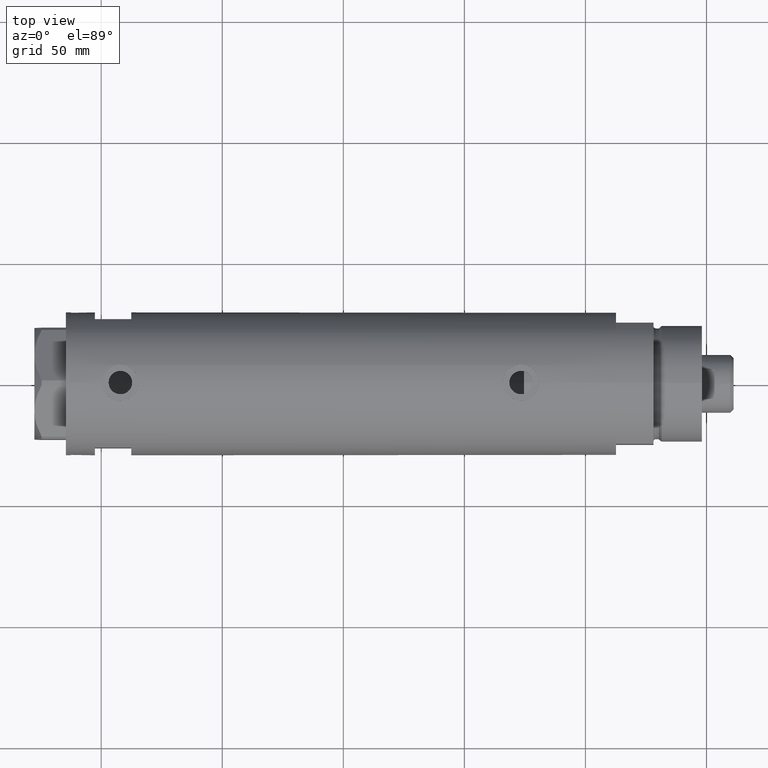
[diagram: clean part render]
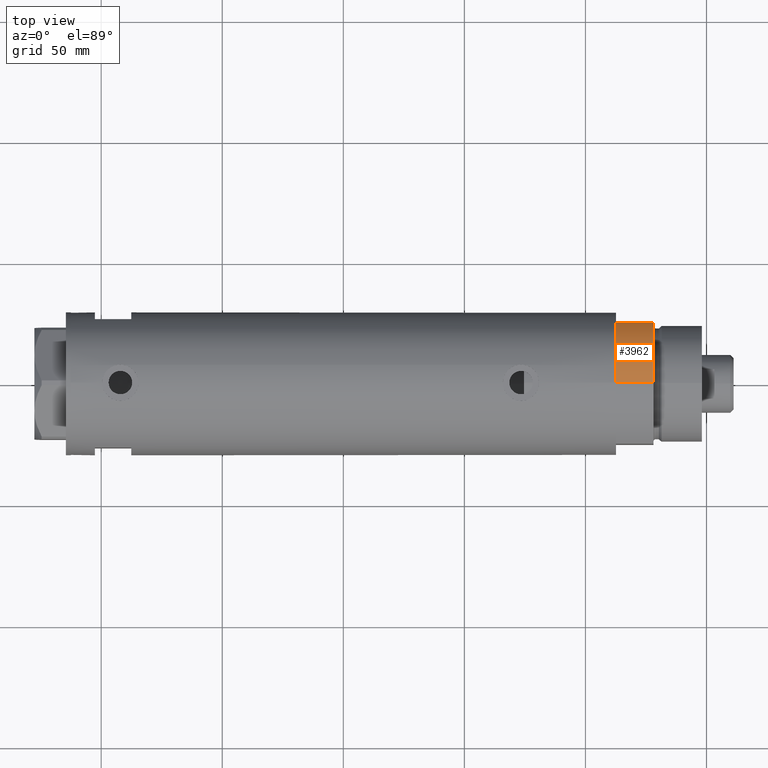
[diagram: same view with one face highlighted and labeled with its STEP entity id]
A machine part, top view. The second image highlights one B-rep face of the part: STEP entity #3962.
In plain terms, the highlighted cylindrical surface (partial cylindrical patch) has radius 29.5 mm, axis along (-1, -0, 0).
Its self-contained STEP definition (entity closure, byte-faithful):
#195 = FACE_OUTER_BOUND ( 'NONE', #3850, .T. ) ;
#221 = CARTESIAN_POINT ( 'NONE',  ( -15.66045976336583045, 25.00000000000000000, 15.50000000000000000 ) ) ;
#346 = CIRCLE ( 'NONE', #3039, 29.50000000000000355 ) ;
#355 = ORIENTED_EDGE ( 'NONE', *, *, #633, .T. ) ;
#402 = DIRECTION ( 'NONE',  ( 1.000000000000000000, 0.000000000000000000, 0.000000000000000000 ) ) ;
#422 = VERTEX_POINT ( 'NONE', #1025 ) ;
#558 = DIRECTION ( 'NONE',  ( 1.000000000000000000, 0.000000000000000000, 0.000000000000000000 ) ) ;
#633 = EDGE_CURVE ( 'NONE', #422, #3597, #346, .T. ) ;
#874 = CARTESIAN_POINT ( 'NONE',  ( 0.000000000000000000, 0.000000000000000000, 15.50000000000000000 ) ) ;
#905 = AXIS2_PLACEMENT_3D ( 'NONE', #874, #3459, #558 ) ;
#925 = DIRECTION ( 'NONE',  ( -0.000000000000000000, -0.000000000000000000, -1.000000000000000000 ) ) ;
#946 = EDGE_CURVE ( 'NONE', #422, #3893, #1547, .T. ) ;
#984 = AXIS2_PLACEMENT_3D ( 'NONE', #1243, #925, #3502 ) ;
#1025 = CARTESIAN_POINT ( 'NONE',  ( -15.66045976336583401, 25.00000000000000000, 0.000000000000000000 ) ) ;
#1140 = VECTOR ( 'NONE', #3353, 1000.000000000000000 ) ;
#1227 = DIRECTION ( 'NONE',  ( -0.000000000000000000, -0.000000000000000000, 1.000000000000000000 ) ) ;
#1243 = CARTESIAN_POINT ( 'NONE',  ( 0.000000000000000000, 0.000000000000000000, 15.50000000000000000 ) ) ;
#1292 = CARTESIAN_POINT ( 'NONE',  ( -29.50000000000000355, 0.000000000000000000, 15.50000000000000000 ) ) ;
#1547 = LINE ( 'NONE', #1935, #4049 ) ;
#1606 = CYLINDRICAL_SURFACE ( 'NONE', #984, 29.50000000000000355 ) ;
#1876 = LINE ( 'NONE', #2948, #1140 ) ;
#1935 = CARTESIAN_POINT ( 'NONE',  ( -15.66045976336583401, 25.00000000000000000, 0.000000000000000000 ) ) ;
#2599 = ORIENTED_EDGE ( 'NONE', *, *, #3872, .F. ) ;
#2948 = CARTESIAN_POINT ( 'NONE',  ( -29.50000000000000355, 0.000000000000000000, 15.50000000000000000 ) ) ;
#3039 = AXIS2_PLACEMENT_3D ( 'NONE', #3713, #3633, #402 ) ;
#3353 = DIRECTION ( 'NONE',  ( -0.000000000000000000, -0.000000000000000000, -1.000000000000000000 ) ) ;
#3367 = CIRCLE ( 'NONE', #905, 29.50000000000000355 ) ;
#3435 = ORIENTED_EDGE ( 'NONE', *, *, #946, .F. ) ;
#3459 = DIRECTION ( 'NONE',  ( 0.000000000000000000, 0.000000000000000000, 1.000000000000000000 ) ) ;
#3502 = DIRECTION ( 'NONE',  ( -1.000000000000000000, 0.000000000000000000, 0.000000000000000000 ) ) ;
#3597 = VERTEX_POINT ( 'NONE', #4191 ) ;
#3633 = DIRECTION ( 'NONE',  ( 0.000000000000000000, 0.000000000000000000, 1.000000000000000000 ) ) ;
#3713 = CARTESIAN_POINT ( 'NONE',  ( 0.000000000000000000, 0.000000000000000000, 0.000000000000000000 ) ) ;
#3850 = EDGE_LOOP ( 'NONE', ( #4754, #2599, #3435, #355 ) ) ;
#3872 = EDGE_CURVE ( 'NONE', #3893, #3928, #3367, .T. ) ;
#3893 = VERTEX_POINT ( 'NONE', #221 ) ;
#3928 = VERTEX_POINT ( 'NONE', #1292 ) ;
#3962 = ADVANCED_FACE ( 'NONE', ( #195 ), #1606, .T. ) ;
#4049 = VECTOR ( 'NONE', #1227, 1000.000000000000000 ) ;
#4169 = EDGE_CURVE ( 'NONE', #3928, #3597, #1876, .T. ) ;
#4191 = CARTESIAN_POINT ( 'NONE',  ( -29.50000000000000355, 0.000000000000000000, 0.000000000000000000 ) ) ;
#4754 = ORIENTED_EDGE ( 'NONE', *, *, #4169, .F. ) ;